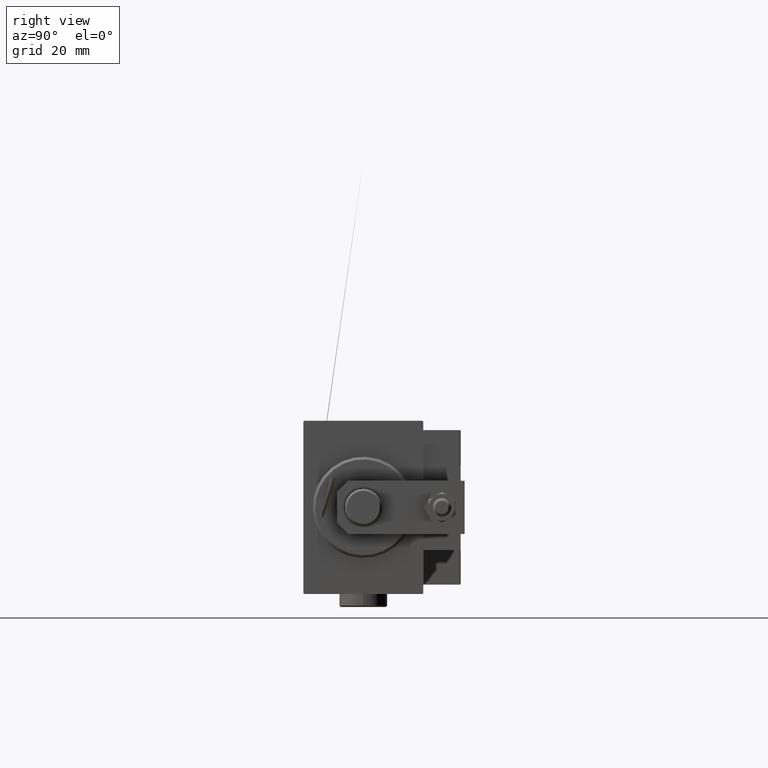
[diagram: clean part render]
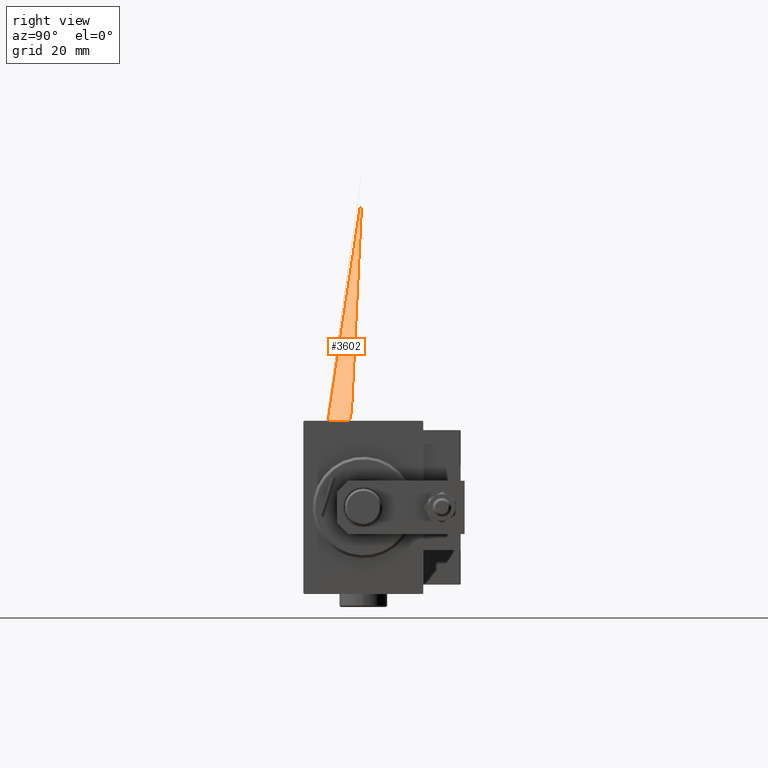
[diagram: same view with one face highlighted and labeled with its STEP entity id]
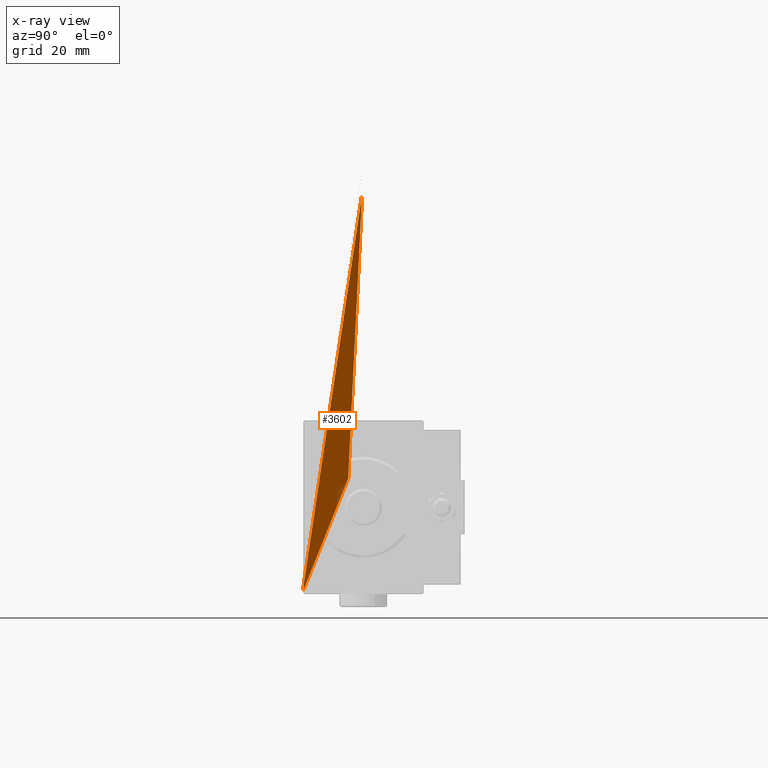
[diagram: x-ray of the same camera — body ghosted, the highlighted face saturated]
A machine part, right view. The second image highlights one B-rep face of the part: STEP entity #3602.
The next image is the same camera in x-ray: the body ghosted, the highlighted face saturated — about 1% of this face is hidden behind the body in this view.
In plain terms, the highlighted face is a freeform B-spline surface patch.
Its self-contained STEP definition (entity closure, byte-faithful):
#466 = VERTEX_POINT ( 'NONE', #27079 ) ;
#1874 = CARTESIAN_POINT ( 'NONE',  ( 15.80751989611952446, 22.50000000000001066, -30.41587865438354044 ) ) ;
#2088 = CARTESIAN_POINT ( 'NONE',  ( 16.99999999999999289, 3.252606517456513302E-15, 10.69999999999999929 ) ) ;
#2125 = EDGE_CURVE ( 'NONE', #7700, #466, #14306, .T. ) ;
#2386 = CARTESIAN_POINT ( 'NONE',  ( 16.32408958913426389, 22.50000000000000000, -31.01590945845469349 ) ) ;
#2916 = CARTESIAN_POINT ( 'NONE',  ( 15.74338443400096210, 22.50000000000000000, -30.27081725648375610 ) ) ;
#2979 = CARTESIAN_POINT ( 'NONE',  ( 15.57051282051282293, 22.50000000000000000, -29.24859775641025195 ) ) ;
#3173 = CARTESIAN_POINT ( 'NONE',  ( 16.42667084047095827, 22.50000000000001421, -31.05860689028868293 ) ) ;
#3427 = CARTESIAN_POINT ( 'NONE',  ( 16.04309620031925121, 22.30000000000000071, -30.78701240403376715 ) ) ;
#3602 = ADVANCED_FACE ( 'NONE', ( #27100 ), #3880, .T. ) ;
#3684 = CARTESIAN_POINT ( 'NONE',  ( 15.87966806031507971, 22.50000000000000000, -30.55241008598377661 ) ) ;
#3880 = B_SPLINE_SURFACE_WITH_KNOTS ( 'NONE', 3, 1, ( 
 ( #10956, #47340 ),
 ( #35646, #47080 ),
 ( #10700, #43183 ),
 ( #7570, #7319 ),
 ( #7065, #19559 ),
 ( #22688, #6802 ),
 ( #23455, #22950 ),
 ( #39044, #2916 ),
 ( #23202, #42410 ),
 ( #39295, #3684 ),
 ( #35387, #26588 ),
 ( #3427, #35130 ),
 ( #50454, #46566 ),
 ( #19303, #15904 ),
 ( #50968, #51221 ),
 ( #15648, #3173 ),
 ( #38791, #38533 ),
 ( #31491, #26841 ),
 ( #31746, #11727 ) ),
 .UNSPECIFIED., .F., .F., .F.,
 ( 4, 1, 1, 1, 1, 1, 1, 1, 1, 1, 1, 1, 1, 1, 1, 1, 4 ),
 ( 2, 2 ),
 ( 0.000000000000000000, 0.08080961268412312215, 0.1588440674531312602, 0.2340579371897537342, 0.3069698159202349785, 0.3777159019349919378, 0.4467633877908758211, 0.5146683712630224505, 0.5813010834476451949, 0.6450317525756039672, 0.7043199103560437990, 0.7589037463231631531, 0.8103542936091873150, 0.8589723129384609912, 0.9060973680452552026, 0.9527144666799771677, 1.000000000000000000 ),
 ( 0.000000000000000000, 1.000000000000000000 ),
 .UNSPECIFIED. ) ;
#4251 = EDGE_CURVE ( 'NONE', #9260, #43320, #22298, .T. ) ;
#5360 = EDGE_CURVE ( 'NONE', #6698, #41666, #17887, .T. ) ;
#5768 = CARTESIAN_POINT ( 'NONE',  ( 15.95863669686765185, 22.50000000000000000, -30.67731084254653595 ) ) ;
#6133 = VERTEX_POINT ( 'NONE', #8065 ) ;
#6698 = VERTEX_POINT ( 'NONE', #32876 ) ;
#6802 = CARTESIAN_POINT ( 'NONE',  ( 15.64578230111499835, 22.50000000000000711, -29.95841372376017020 ) ) ;
#6982 = CARTESIAN_POINT ( 'NONE',  ( 16.69999999999999929, 5.700000000000003730, 10.69999999999999929 ) ) ;
#7065 = CARTESIAN_POINT ( 'NONE',  ( 15.61285811959595371, 22.30000000000000426, -29.79114536717556661 ) ) ;
#7319 = CARTESIAN_POINT ( 'NONE',  ( 15.58815821011441294, 22.50000000000000000, -29.61681765543912803 ) ) ;
#7570 = CARTESIAN_POINT ( 'NONE',  ( 15.58815821011441294, 22.29999999999999716, -29.61681765543912803 ) ) ;
#7700 = VERTEX_POINT ( 'NONE', #2979 ) ;
#7890 = ORIENTED_EDGE ( 'NONE', *, *, #51301, .F. ) ;
#8044 = ORIENTED_EDGE ( 'NONE', *, *, #2125, .F. ) ;
#8065 = CARTESIAN_POINT ( 'NONE',  ( -9.000000000000000000, 0.000000000000000000, 129.5000000000000568 ) ) ;
#8506 = CARTESIAN_POINT ( 'NONE',  ( -9.000000000000000000, 0.000000000000000000, 130.0000000000000000 ) ) ;
#9260 = VERTEX_POINT ( 'NONE', #2088 ) ;
#10700 = CARTESIAN_POINT ( 'NONE',  ( 15.57323493499968414, 22.30000000000000782, -29.43512311253497771 ) ) ;
#10956 = CARTESIAN_POINT ( 'NONE',  ( 15.57051282051282293, 22.30000000000000071, -29.24859775641025195 ) ) ;
#11727 = CARTESIAN_POINT ( 'NONE',  ( 16.64393028846154010, 22.50000000000000355, -31.08974358974358765 ) ) ;
#13320 = CARTESIAN_POINT ( 'NONE',  ( 15.57051282051282293, 22.50000000000000000, -29.24859775641025195 ) ) ;
#13718 = CARTESIAN_POINT ( 'NONE',  ( 16.69999999999999218, 0.3000000000000033751, 11.00000000000000000 ) ) ;
#13843 = CARTESIAN_POINT ( 'NONE',  ( 15.58815821011441294, 22.49999999999999645, -29.61681765543912803 ) ) ;
#14306 = B_SPLINE_CURVE_WITH_KNOTS ( 'NONE', 3,
 ( #13320, #25811, #17744, #13843, #37490, #18005, #17494, #25301, #1874, #25555, #5768, #49422, #21396, #37228, #2386, #45018, #41124, #29183, #33323 ),
 .UNSPECIFIED., .F., .F.,
 ( 4, 1, 1, 1, 1, 1, 1, 1, 1, 1, 1, 1, 1, 1, 1, 1, 4 ),
 ( 0.000000000000000000, 0.08080961268412312215, 0.1588440674531312602, 0.2340579371897537342, 0.3069698159202349785, 0.3777159019349919378, 0.4467633877908758211, 0.5146683712630224505, 0.5813010834476451949, 0.6450317525756039672, 0.7043199103560437990, 0.7589037463231631531, 0.8103542936091873150, 0.8589723129384609912, 0.9060973680452552026, 0.9527144666799771677, 1.000000000000000000 ),
 .UNSPECIFIED. ) ;
#15648 = CARTESIAN_POINT ( 'NONE',  ( 16.42667084047095827, 22.30000000000001137, -31.05860689028868293 ) ) ;
#15904 = CARTESIAN_POINT ( 'NONE',  ( 16.22536597377007084, 22.50000000000000355, -30.95694596310140057 ) ) ;
#17494 = CARTESIAN_POINT ( 'NONE',  ( 15.69059244847776569, 22.49999999999999645, -30.11790227407749398 ) ) ;
#17744 = CARTESIAN_POINT ( 'NONE',  ( 15.57323493499968414, 22.50000000000000711, -29.43512311253497771 ) ) ;
#17887 = CIRCLE ( 'NONE', #22914, 0.2999999999999999334 ) ;
#18005 = CARTESIAN_POINT ( 'NONE',  ( 15.64578230111499835, 22.50000000000000355, -29.95841372376017020 ) ) ;
#19303 = CARTESIAN_POINT ( 'NONE',  ( 16.22536597377007084, 22.30000000000000071, -30.95694596310140057 ) ) ;
#19559 = CARTESIAN_POINT ( 'NONE',  ( 15.61285811959595371, 22.50000000000000711, -29.79114536717556661 ) ) ;
#21396 = CARTESIAN_POINT ( 'NONE',  ( 16.13211807726029079, 22.50000000000000355, -30.88025471961798374 ) ) ;
#22298 =( BOUNDED_CURVE ( )  B_SPLINE_CURVE ( 3, ( #51293, #50786, #39620, #43000 ),
 .UNSPECIFIED., .F., .F. ) 
 B_SPLINE_CURVE_WITH_KNOTS ( ( 4, 4 ),
 ( 0.000000000000000000, 1.570796326794896558 ),
 .UNSPECIFIED. ) 
 CURVE ( )  GEOMETRIC_REPRESENTATION_ITEM ( )  RATIONAL_B_SPLINE_CURVE ( ( 1.000000000000000000, 0.8047378541243649375, 0.8047378541243649375, 1.000000000000000000 ) ) 
 REPRESENTATION_ITEM ( '' )  );
#22688 = CARTESIAN_POINT ( 'NONE',  ( 15.64578230111499835, 22.30000000000000426, -29.95841372376017020 ) ) ;
#22914 = AXIS2_PLACEMENT_3D ( 'NONE', #6982, #23628, #34782 ) ;
#22950 = CARTESIAN_POINT ( 'NONE',  ( 15.69059244847776569, 22.50000000000000000, -30.11790227407749398 ) ) ;
#23202 = CARTESIAN_POINT ( 'NONE',  ( 15.80751989611952446, 22.30000000000001137, -30.41587865438354044 ) ) ;
#23455 = CARTESIAN_POINT ( 'NONE',  ( 15.69059244847776569, 22.29999999999999716, -30.11790227407749398 ) ) ;
#23628 = DIRECTION ( 'NONE',  ( -0.000000000000000000, -1.000000000000000000, -0.000000000000000000 ) ) ;
#25301 = CARTESIAN_POINT ( 'NONE',  ( 15.74338443400096210, 22.49999999999999645, -30.27081725648375610 ) ) ;
#25555 = CARTESIAN_POINT ( 'NONE',  ( 15.87966806031507971, 22.49999999999999645, -30.55241008598377661 ) ) ;
#25811 = CARTESIAN_POINT ( 'NONE',  ( 15.57143069925033707, 22.50000000000000355, -29.31149285476874766 ) ) ;
#26588 = CARTESIAN_POINT ( 'NONE',  ( 15.95863669686765185, 22.50000000000000355, -30.67731084254653595 ) ) ;
#26841 = CARTESIAN_POINT ( 'NONE',  ( 16.60709156127414232, 22.50000000000000000, -31.08815932102894308 ) ) ;
#27079 = CARTESIAN_POINT ( 'NONE',  ( 16.64393028846154010, 22.50000000000000000, -31.08974358974358765 ) ) ;
#27100 = FACE_OUTER_BOUND ( 'NONE', #46647, .T. ) ;
#29183 = CARTESIAN_POINT ( 'NONE',  ( 16.60709156127414232, 22.49999999999999645, -31.08815932102894308 ) ) ;
#29235 = VECTOR ( 'NONE', #51135, 1000.000000000000000 ) ;
#29559 = CARTESIAN_POINT ( 'NONE',  ( -9.000000000000000000, 0.000000000000000000, 33.00000000000000000 ) ) ;
#31491 = CARTESIAN_POINT ( 'NONE',  ( 16.60709156127414232, 22.29999999999999716, -31.08815932102894308 ) ) ;
#31746 = CARTESIAN_POINT ( 'NONE',  ( 16.64393028846154010, 22.30000000000000071, -31.08974358974358765 ) ) ;
#32876 = CARTESIAN_POINT ( 'NONE',  ( 17.00000000000000000, 5.700000000000003730, 10.69999999999999929 ) ) ;
#33323 = CARTESIAN_POINT ( 'NONE',  ( 16.64393028846154010, 22.50000000000000000, -31.08974358974358765 ) ) ;
#34782 = DIRECTION ( 'NONE',  ( 0.000000000000000000, 0.000000000000000000, 1.000000000000000000 ) ) ;
#35040 = LINE ( 'NONE', #8506, #29235 ) ;
#35130 = CARTESIAN_POINT ( 'NONE',  ( 16.04309620031925121, 22.50000000000000355, -30.78701240403376715 ) ) ;
#35387 = CARTESIAN_POINT ( 'NONE',  ( 15.95863669686765185, 22.30000000000000071, -30.67731084254653595 ) ) ;
#35646 = CARTESIAN_POINT ( 'NONE',  ( 15.57143069925033707, 22.30000000000000426, -29.31149285476874766 ) ) ;
#37228 = CARTESIAN_POINT ( 'NONE',  ( 16.22536597377007084, 22.50000000000000000, -30.95694596310140057 ) ) ;
#37490 = CARTESIAN_POINT ( 'NONE',  ( 15.61285811959595371, 22.50000000000000355, -29.79114536717556661 ) ) ;
#38533 = CARTESIAN_POINT ( 'NONE',  ( 16.53393486412223012, 22.50000000000000000, -31.08501317903617789 ) ) ;
#38791 = CARTESIAN_POINT ( 'NONE',  ( 16.53393486412223012, 22.29999999999999716, -31.08501317903617789 ) ) ;
#39044 = CARTESIAN_POINT ( 'NONE',  ( 15.74338443400096210, 22.29999999999999716, -30.27081725648375610 ) ) ;
#39295 = CARTESIAN_POINT ( 'NONE',  ( 15.87966806031507971, 22.29999999999999716, -30.55241008598377661 ) ) ;
#39620 = CARTESIAN_POINT ( 'NONE',  ( 16.87573593128806237, 0.1242640687119318799, 11.00000000000000178 ) ) ;
#40785 = ORIENTED_EDGE ( 'NONE', *, *, #5360, .T. ) ;
#41124 = CARTESIAN_POINT ( 'NONE',  ( 16.53393486412223012, 22.49999999999999645, -31.08501317903617789 ) ) ;
#41666 = VERTEX_POINT ( 'NONE', #46745 ) ;
#41859 = VERTEX_POINT ( 'NONE', #29559 ) ;
#42410 = CARTESIAN_POINT ( 'NONE',  ( 15.80751989611952446, 22.50000000000001421, -30.41587865438354044 ) ) ;
#43000 = CARTESIAN_POINT ( 'NONE',  ( 16.69999999999999218, 0.3000000000000033751, 11.00000000000000000 ) ) ;
#43183 = CARTESIAN_POINT ( 'NONE',  ( 15.57323493499968414, 22.50000000000001066, -29.43512311253497771 ) ) ;
#43320 = VERTEX_POINT ( 'NONE', #13718 ) ;
#45018 = CARTESIAN_POINT ( 'NONE',  ( 16.42667084047095827, 22.50000000000001066, -31.05860689028868293 ) ) ;
#46566 = CARTESIAN_POINT ( 'NONE',  ( 16.13211807726029079, 22.50000000000000711, -30.88025471961798374 ) ) ;
#46647 = EDGE_LOOP ( 'NONE', ( #8044, #7890, #49370, #40785 ) ) ;
#46745 = CARTESIAN_POINT ( 'NONE',  ( 16.69999999999999929, 5.700000000000003730, 11.00000000000000000 ) ) ;
#47080 = CARTESIAN_POINT ( 'NONE',  ( 15.57143069925033707, 22.50000000000000711, -29.31149285476874766 ) ) ;
#47340 = CARTESIAN_POINT ( 'NONE',  ( 15.57051282051282293, 22.50000000000000355, -29.24859775641025195 ) ) ;
#49370 = ORIENTED_EDGE ( 'NONE', *, *, #4251, .T. ) ;
#49422 = CARTESIAN_POINT ( 'NONE',  ( 16.04309620031925121, 22.50000000000000000, -30.78701240403376715 ) ) ;
#50454 = CARTESIAN_POINT ( 'NONE',  ( 16.13211807726029079, 22.30000000000000426, -30.88025471961798374 ) ) ;
#50786 = CARTESIAN_POINT ( 'NONE',  ( 16.99999999999998934, 3.361026734705063745E-15, 10.87573593128806948 ) ) ;
#50968 = CARTESIAN_POINT ( 'NONE',  ( 16.32408958913426389, 22.30000000000000071, -31.01590945845469349 ) ) ;
#51135 = DIRECTION ( 'NONE',  ( -0.000000000000000000, -0.000000000000000000, -1.000000000000000000 ) ) ;
#51221 = CARTESIAN_POINT ( 'NONE',  ( 16.32408958913426389, 22.50000000000000355, -31.01590945845469349 ) ) ;
#51293 = CARTESIAN_POINT ( 'NONE',  ( 16.99999999999999289, 3.252606517456513302E-15, 10.69999999999999929 ) ) ;
#51301 = EDGE_CURVE ( 'NONE', #6133, #41859, #35040, .T. ) ;